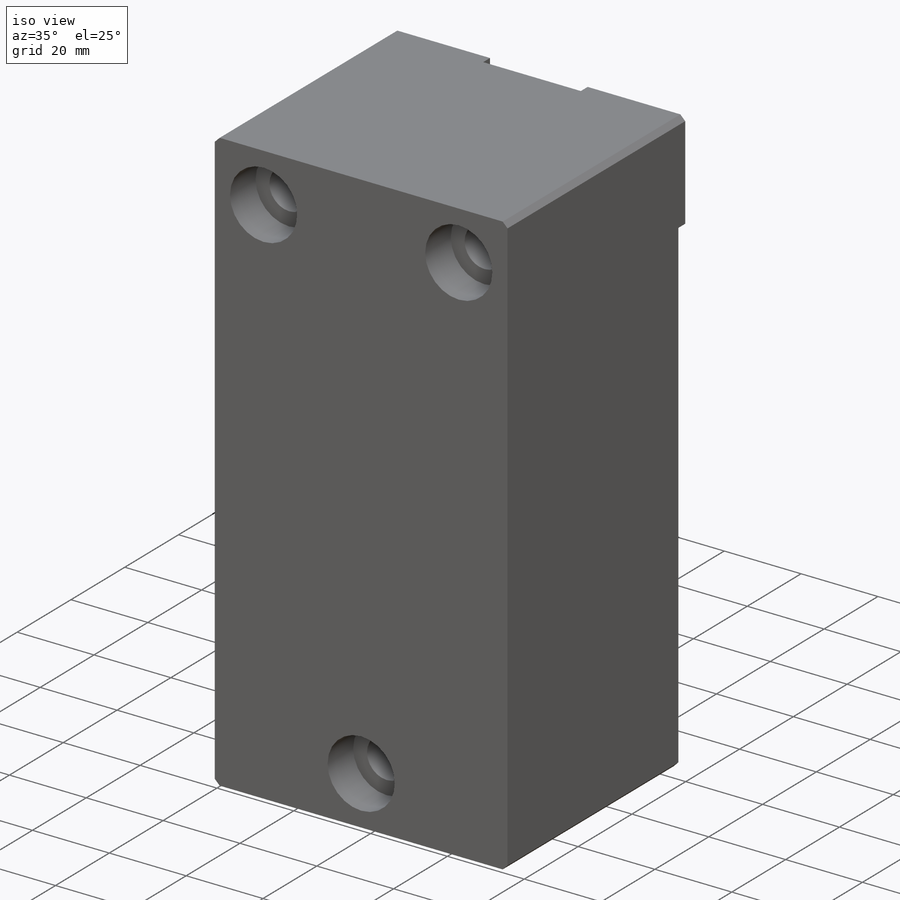
[diagram: iso view]
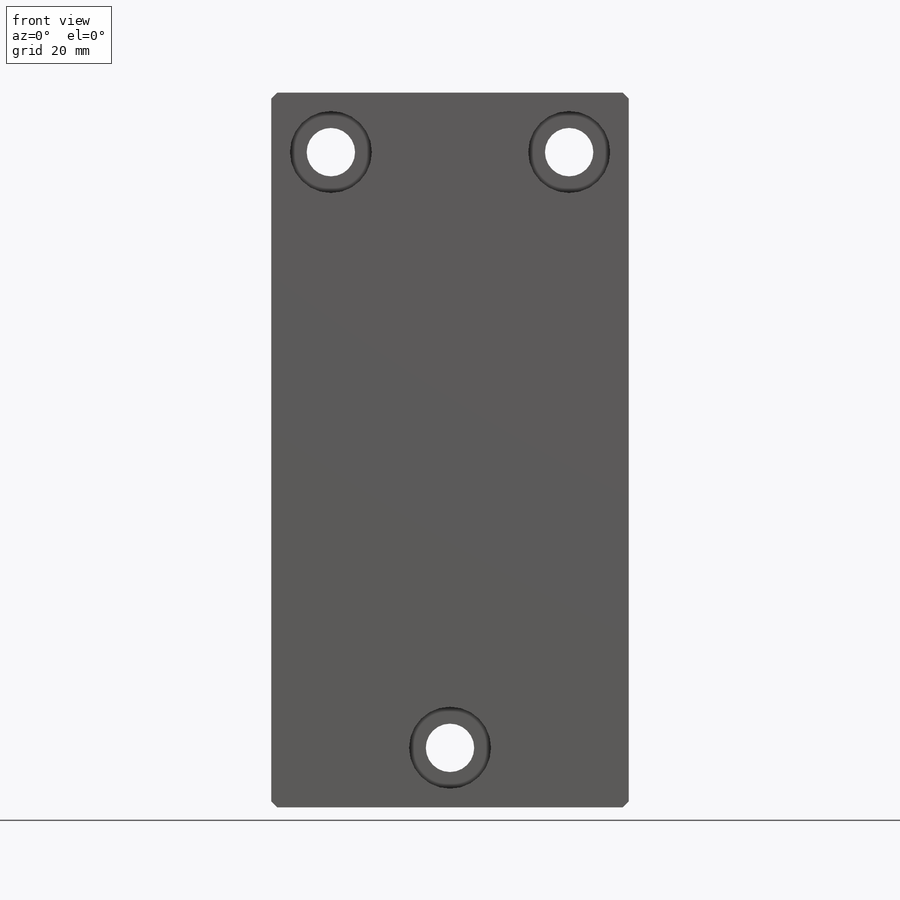
[diagram: front view]
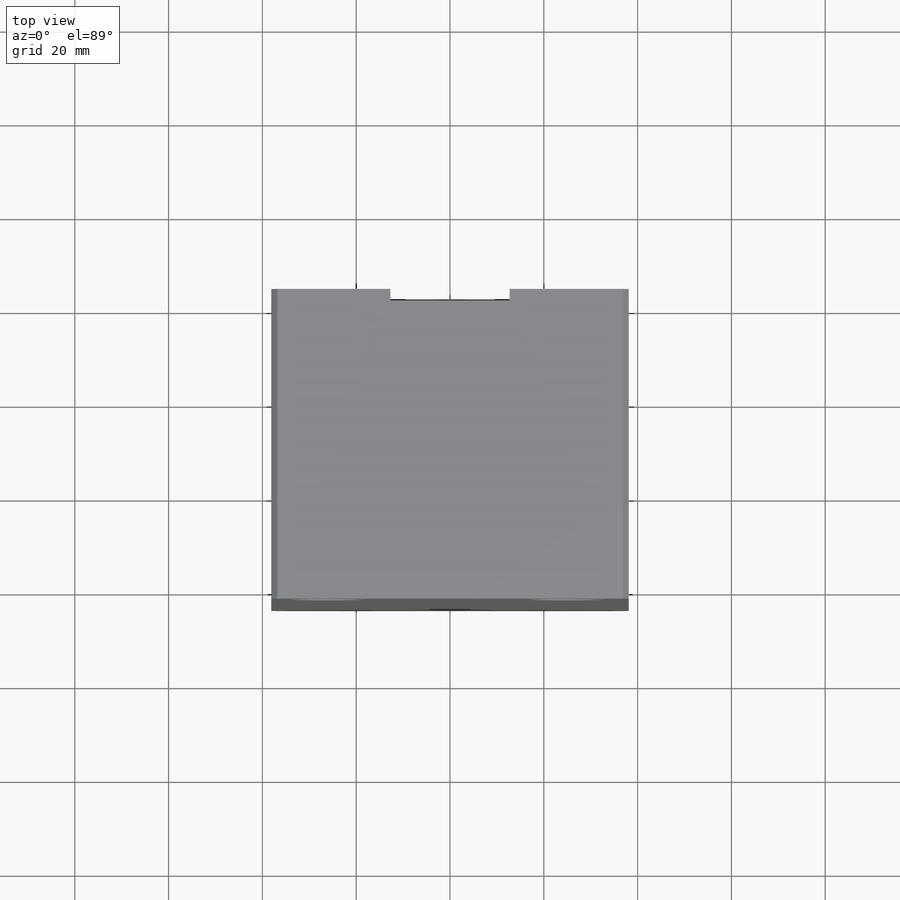
[diagram: top view]
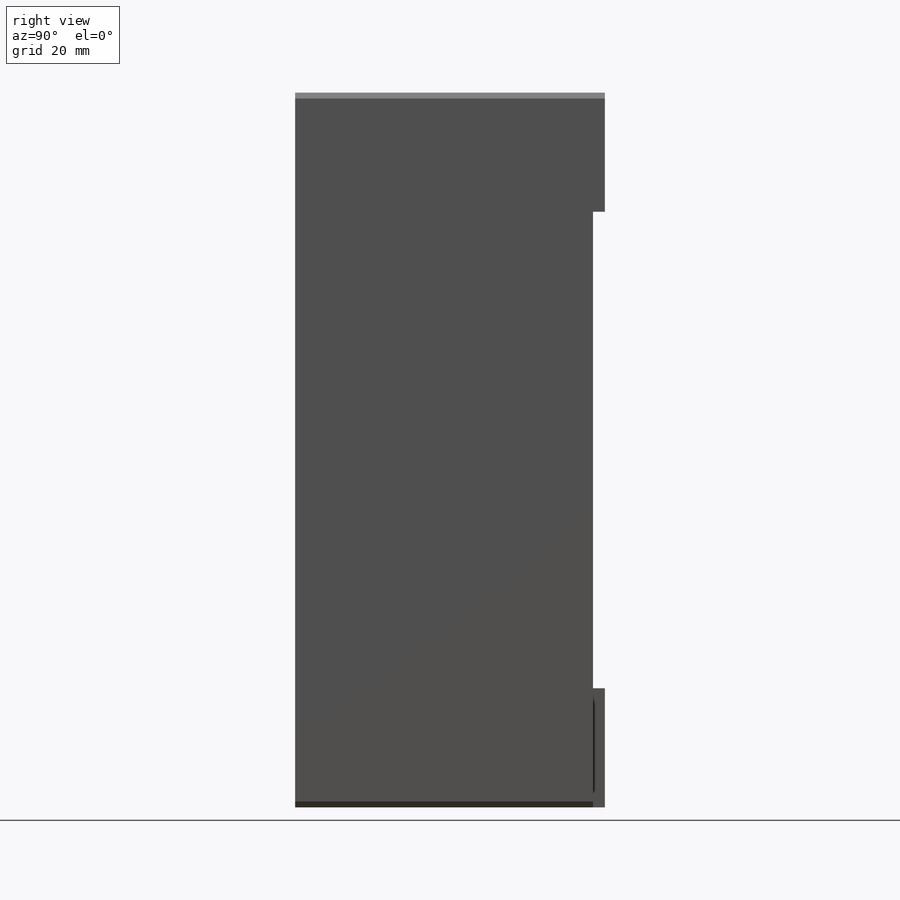
[diagram: right view]
SOLIDWORKS PART (.sldprt)
format: sldprt  version: not decoded by parser v0  size: 222,208 bytes
history: native  units: mm
features: sketch x4, extrude x2, material x1, hole x1, chamfer x1 (+16 scaffold rows collapsed)
feature tree (25):
  scaffold x16  (default folders/planes/origin — collapsed)
  material  "AISI 304"
  sketch  "Sketch1"  dims[D1=76.2mm D2=152.4mm D3=38.1mm D4=38.1mm]
  extrude  "Extrude1"  Depth=63.5mm
  sketch  "Sketch4"  dims[D1=25.4mm D2=25.4mm D3=25.4mm D4=25.4mm D5=25.4mm D6=25.4mm D7=25.4mm]
  extrude  "Extrude2"  Depth=2.54mm
  hole  "CBORE for 3/8 Socket Head Cap Screw1"  Diameter=10.31748mm Depth=66.040025mm
  sketch  "Sketch3"  dims[c1.D1=12.7mm c1.D2=50.8mm c1.D3=12.7mm c1.D4=12.7mm c1.D5=12.7mm c1.D6=50.8mm c1.D7=~6.909858mm c2.D5=63.5mm c2.D4=38.1mm c3.D5=12.7mm]
  sketch  "Sketch2"  dims[hole-wizard template sketch: 42 standard entries collapsed; hole parameters kept: c12.Thru Hole Depth=~66.040025mm c12.C'Bore Dia.=17.4752mm c12.C'Bore Depth=9.525mm]
  chamfer  "Chamfer2"  Distance=1.27mm Angle=45deg
decode coverage: 8 of 8 modeling features carry decoded parameters
note: ~ marks probable driven/reference dimensions
note: suppression state not decoded; provenance and decode notes live in map.json
